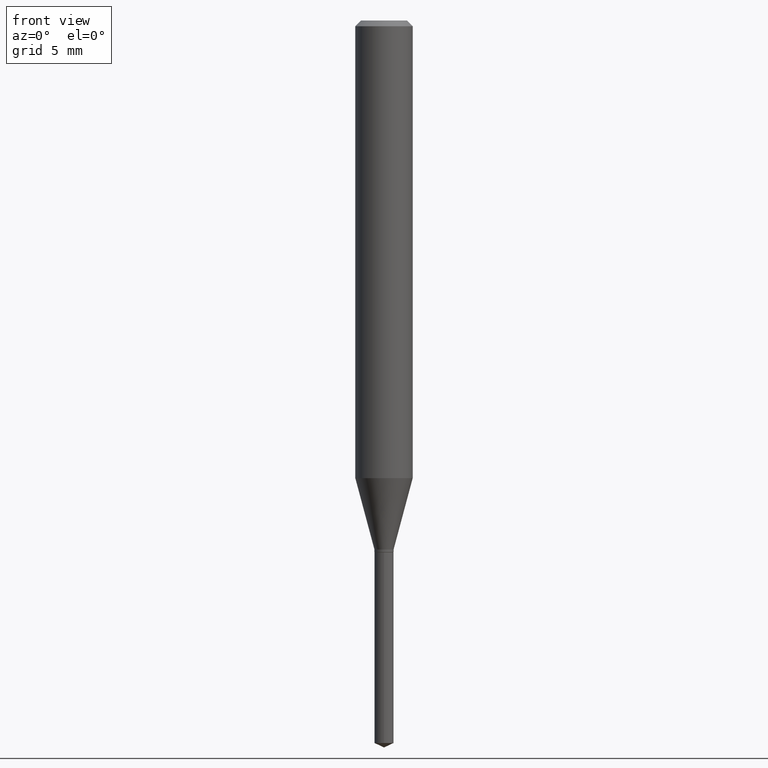
[diagram: clean part render]
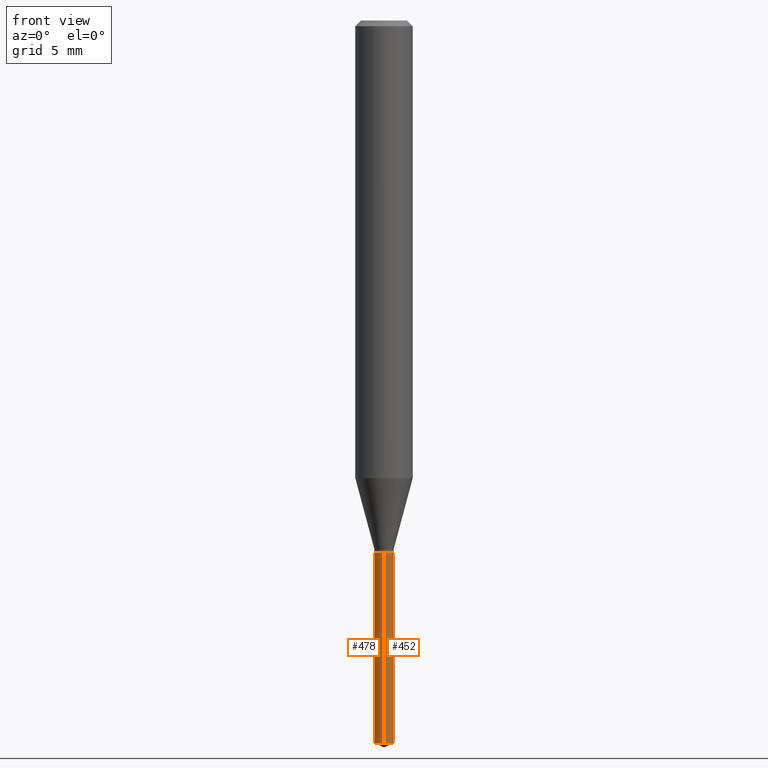
[diagram: same view with one multi-face feature highlighted, each face labeled with its STEP entity id]
A machine part, front view. The highlighted faces form ONE feature: a constant-radius fillet chain: 2 tangent blend faces with common blend radius 0.5004 mm. The faces share edges in the B-rep.
Their STEP definitions:
[1] entity #478 (Cylinder):
#10 = EDGE_CURVE ( 'NONE', #385, #415, #285, .T. ) ;
#49 = VERTEX_POINT ( 'NONE', #217 ) ;
#67 = AXIS2_PLACEMENT_3D ( 'NONE', #282, #349, #205 ) ;
#88 = CARTESIAN_POINT ( 'NONE',  ( 1.399769189447761387E-16, 0.01969999999999617890, -1.094500000000000028 ) ) ;
#94 = ORIENTED_EDGE ( 'NONE', *, *, #140, .T. ) ;
#97 = CARTESIAN_POINT ( 'NONE',  ( -1.375643647503926643E-16, -0.01970000000000381862, -1.094499999999999806 ) ) ;
#140 = EDGE_CURVE ( 'NONE', #49, #415, #477, .T. ) ;
#144 = DIRECTION ( 'NONE',  ( -2.445470214571802116E-29, 3.491479321953280158E-15, 1.000000000000000000 ) ) ;
#161 = ORIENTED_EDGE ( 'NONE', *, *, #10, .F. ) ;
#179 = DIRECTION ( 'NONE',  ( -2.445470214571802396E-29, 3.491479321953280158E-15, 1.000000000000000000 ) ) ;
#190 = CIRCLE ( 'NONE', #215, 0.01969999999999999876 ) ;
#196 = EDGE_LOOP ( 'NONE', ( #272, #228, #94, #161 ) ) ;
#205 = DIRECTION ( 'NONE',  ( -6.982962677686265133E-15, -1.000000000000000000, 6.933624349401683764E-15 ) ) ;
#215 = AXIS2_PLACEMENT_3D ( 'NONE', #237, #283, #392 ) ;
#217 = CARTESIAN_POINT ( 'NONE',  ( -1.375643647503830500E-16, -0.01970000000000518905, -1.486913739134346546 ) ) ;
#228 = ORIENTED_EDGE ( 'NONE', *, *, #440, .T. ) ;
#237 = CARTESIAN_POINT ( 'NONE',  ( 3.636201719211425754E-29, -5.191530781201762565E-15, -1.486913739134346546 ) ) ;
#255 = DIRECTION ( 'NONE',  ( -6.982962677686265133E-15, -1.000000000000000000, 6.933624349401683764E-15 ) ) ;
#271 = EDGE_CURVE ( 'NONE', #391, #385, #298, .T. ) ;
#272 = ORIENTED_EDGE ( 'NONE', *, *, #271, .F. ) ;
#282 = CARTESIAN_POINT ( 'NONE',  ( 2.676565608369631794E-29, -3.821426325363822773E-15, -1.094499999999999806 ) ) ;
#283 = DIRECTION ( 'NONE',  ( -2.445470214571802116E-29, 3.491479321953280158E-15, 1.000000000000000000 ) ) ;
#285 = CIRCLE ( 'NONE', #67, 0.01969999999999999876 ) ;
#291 = CARTESIAN_POINT ( 'NONE',  ( 2.676565608369631794E-29, -3.821426325363822773E-15, -1.094499999999999806 ) ) ;
#298 = LINE ( 'NONE', #416, #333 ) ;
#333 = VECTOR ( 'NONE', #384, 39.37007874015748143 ) ;
#349 = DIRECTION ( 'NONE',  ( -2.445470214571802116E-29, 3.491479321953280158E-15, 1.000000000000000000 ) ) ;
#384 = DIRECTION ( 'NONE',  ( -2.445470214571802396E-29, 3.491479321953280158E-15, 1.000000000000000000 ) ) ;
#385 = VERTEX_POINT ( 'NONE', #88 ) ;
#391 = VERTEX_POINT ( 'NONE', #433 ) ;
#392 = DIRECTION ( 'NONE',  ( -6.982962677686265133E-15, -1.000000000000000000, 0.000000000000000000 ) ) ;
#415 = VERTEX_POINT ( 'NONE', #97 ) ;
#416 = CARTESIAN_POINT ( 'NONE',  ( 1.399769189447664505E-16, 0.01969999999999617890, -1.094500000000000028 ) ) ;
#433 = CARTESIAN_POINT ( 'NONE',  ( 1.399769189447760154E-16, 0.01969999999999480153, -1.486913739134346546 ) ) ;
#440 = EDGE_CURVE ( 'NONE', #391, #49, #190, .T. ) ;
#446 = FACE_OUTER_BOUND ( 'NONE', #196, .T. ) ;
#466 = VECTOR ( 'NONE', #179, 39.37007874015748143 ) ;
#473 = CYLINDRICAL_SURFACE ( 'NONE', #476, 0.01969999999999999876 ) ;
#476 = AXIS2_PLACEMENT_3D ( 'NONE', #291, #144, #255 ) ;
#477 = LINE ( 'NONE', #480, #466 ) ;
#478 = ADVANCED_FACE ( 'NONE', ( #446 ), #473, .T. ) ;
#480 = CARTESIAN_POINT ( 'NONE',  ( -1.375643647503926643E-16, -0.01970000000000381862, -1.094499999999999806 ) ) ;
[2] entity #452 (Cylinder):
#13 = ORIENTED_EDGE ( 'NONE', *, *, #151, .T. ) ;
#49 = VERTEX_POINT ( 'NONE', #217 ) ;
#66 = CARTESIAN_POINT ( 'NONE',  ( 3.636201719211425754E-29, -5.191530781201762565E-15, -1.486913739134346546 ) ) ;
#78 = CARTESIAN_POINT ( 'NONE',  ( 2.676565608369631794E-29, -3.821426325363822773E-15, -1.094499999999999806 ) ) ;
#80 = DIRECTION ( 'NONE',  ( -2.445470214571802116E-29, 3.491479321953280158E-15, 1.000000000000000000 ) ) ;
#88 = CARTESIAN_POINT ( 'NONE',  ( 1.399769189447761387E-16, 0.01969999999999617890, -1.094500000000000028 ) ) ;
#96 = ORIENTED_EDGE ( 'NONE', *, *, #233, .F. ) ;
#97 = CARTESIAN_POINT ( 'NONE',  ( -1.375643647503926643E-16, -0.01970000000000381862, -1.094499999999999806 ) ) ;
#114 = AXIS2_PLACEMENT_3D ( 'NONE', #201, #174, #239 ) ;
#131 = ORIENTED_EDGE ( 'NONE', *, *, #140, .F. ) ;
#139 = DIRECTION ( 'NONE',  ( -2.445470214571802116E-29, 3.491479321953280158E-15, 1.000000000000000000 ) ) ;
#140 = EDGE_CURVE ( 'NONE', #49, #415, #477, .T. ) ;
#148 = ORIENTED_EDGE ( 'NONE', *, *, #271, .T. ) ;
#151 = EDGE_CURVE ( 'NONE', #49, #391, #162, .T. ) ;
#162 = CIRCLE ( 'NONE', #325, 0.01969999999999999876 ) ;
#174 = DIRECTION ( 'NONE',  ( -2.445470214571802116E-29, 3.491479321953280158E-15, 1.000000000000000000 ) ) ;
#179 = DIRECTION ( 'NONE',  ( -2.445470214571802396E-29, 3.491479321953280158E-15, 1.000000000000000000 ) ) ;
#201 = CARTESIAN_POINT ( 'NONE',  ( 2.676565608369631794E-29, -3.821426325363822773E-15, -1.094499999999999806 ) ) ;
#217 = CARTESIAN_POINT ( 'NONE',  ( -1.375643647503830500E-16, -0.01970000000000518905, -1.486913739134346546 ) ) ;
#233 = EDGE_CURVE ( 'NONE', #415, #385, #356, .T. ) ;
#239 = DIRECTION ( 'NONE',  ( -6.982962677686265133E-15, -1.000000000000000000, 6.933624349401683764E-15 ) ) ;
#271 = EDGE_CURVE ( 'NONE', #391, #385, #298, .T. ) ;
#279 = FACE_OUTER_BOUND ( 'NONE', #461, .T. ) ;
#289 = DIRECTION ( 'NONE',  ( -6.982962677686265133E-15, -1.000000000000000000, 0.000000000000000000 ) ) ;
#298 = LINE ( 'NONE', #416, #333 ) ;
#325 = AXIS2_PLACEMENT_3D ( 'NONE', #66, #139, #289 ) ;
#333 = VECTOR ( 'NONE', #384, 39.37007874015748143 ) ;
#345 = DIRECTION ( 'NONE',  ( -6.982962677686265133E-15, -1.000000000000000000, 6.933624349401683764E-15 ) ) ;
#356 = CIRCLE ( 'NONE', #429, 0.01969999999999999876 ) ;
#384 = DIRECTION ( 'NONE',  ( -2.445470214571802396E-29, 3.491479321953280158E-15, 1.000000000000000000 ) ) ;
#385 = VERTEX_POINT ( 'NONE', #88 ) ;
#391 = VERTEX_POINT ( 'NONE', #433 ) ;
#415 = VERTEX_POINT ( 'NONE', #97 ) ;
#416 = CARTESIAN_POINT ( 'NONE',  ( 1.399769189447664505E-16, 0.01969999999999617890, -1.094500000000000028 ) ) ;
#429 = AXIS2_PLACEMENT_3D ( 'NONE', #78, #80, #345 ) ;
#433 = CARTESIAN_POINT ( 'NONE',  ( 1.399769189447760154E-16, 0.01969999999999480153, -1.486913739134346546 ) ) ;
#452 = ADVANCED_FACE ( 'NONE', ( #279 ), #464, .T. ) ;
#461 = EDGE_LOOP ( 'NONE', ( #13, #148, #96, #131 ) ) ;
#464 = CYLINDRICAL_SURFACE ( 'NONE', #114, 0.01969999999999999876 ) ;
#466 = VECTOR ( 'NONE', #179, 39.37007874015748143 ) ;
#477 = LINE ( 'NONE', #480, #466 ) ;
#480 = CARTESIAN_POINT ( 'NONE',  ( -1.375643647503926643E-16, -0.01970000000000381862, -1.094499999999999806 ) ) ;